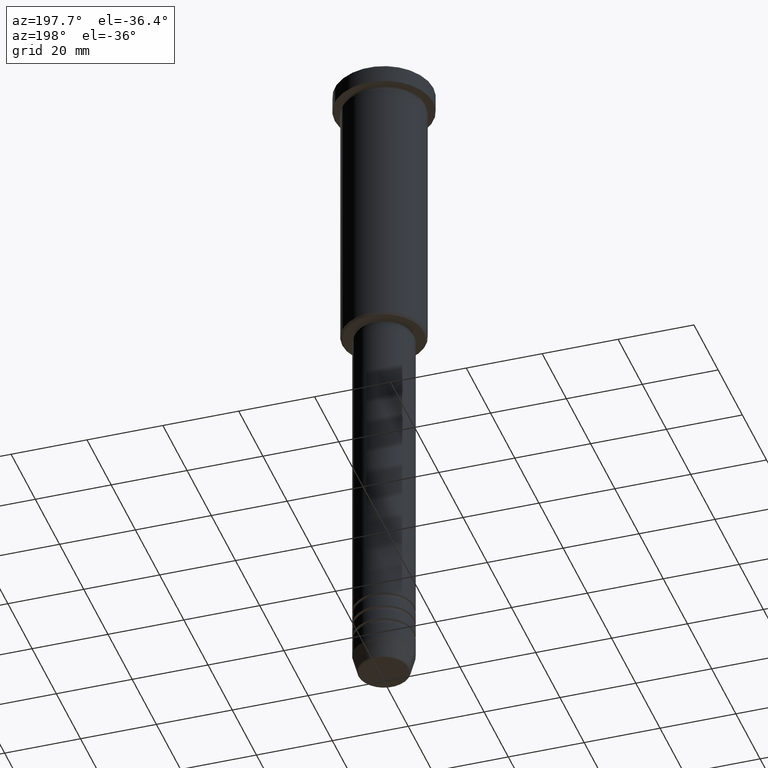
[diagram: clean part render]
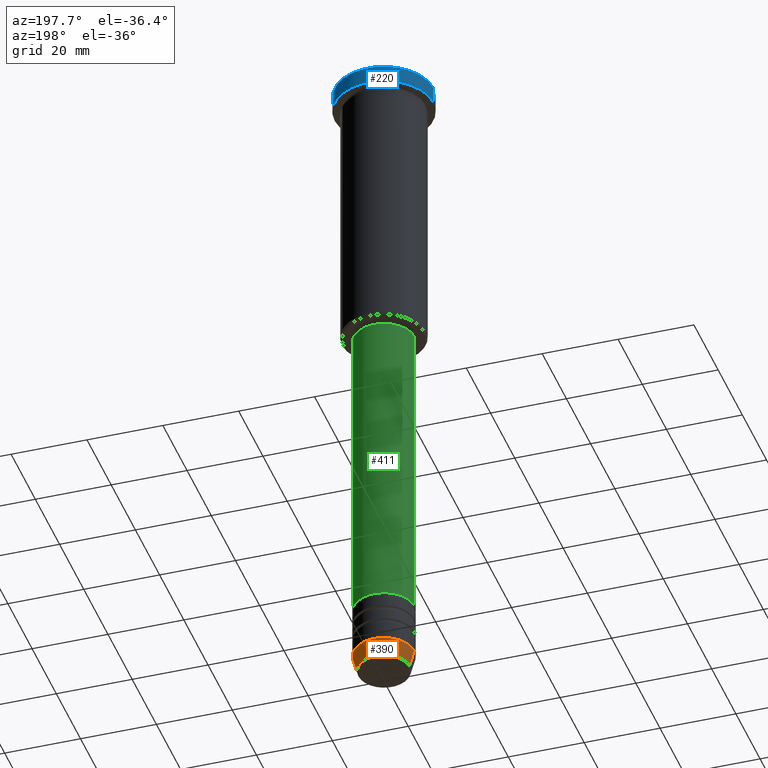
[diagram: same view with three faces highlighted in distinct colors, each labeled with its STEP entity id]
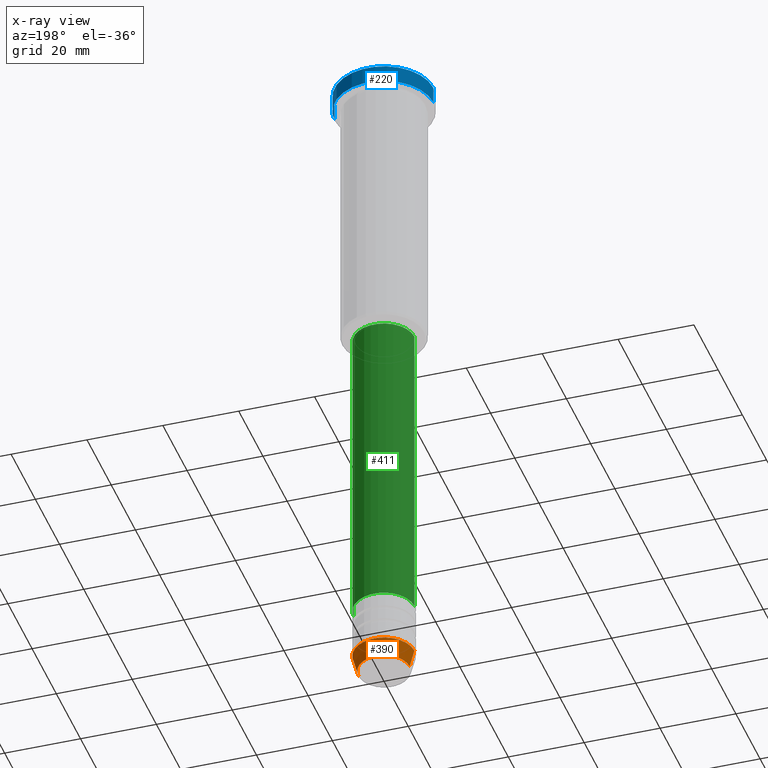
[diagram: x-ray of the same camera — body ghosted, the three highlighted faces saturated]
A machine part, auxiliary view with three faces highlighted in distinct colors.
The next image is the same camera in x-ray (body ghosted, the three faces saturated) — at least one of them is partly hidden behind the body in this view.
Their STEP definitions:

[orange] entity #390 — the highlighted conical surface has half-angle 15 deg.
#58 = CARTESIAN_POINT ( 'NONE',  ( 6.759553456999444876, 0.000000000000000000, -179.6294095225512422 ) ) ;
#70 = CARTESIAN_POINT ( 'NONE',  ( -8.000000000000000000, 9.797174393178825657E-16, -175.0000000000000284 ) ) ;
#105 = VERTEX_POINT ( 'NONE', #1067 ) ;
#143 = CARTESIAN_POINT ( 'NONE',  ( 0.000000000000000000, 0.000000000000000000, -175.0000000000000284 ) ) ;
#181 = FACE_OUTER_BOUND ( 'NONE', #667, .T. ) ;
#231 = AXIS2_PLACEMENT_3D ( 'NONE', #943, #1142, #494 ) ;
#297 = DIRECTION ( 'NONE',  ( 1.000000000000000000, 0.000000000000000000, 0.000000000000000000 ) ) ;
#340 = DIRECTION ( 'NONE',  ( 1.000000000000000000, 0.000000000000000000, 0.000000000000000000 ) ) ;
#377 = EDGE_CURVE ( 'NONE', #1123, #454, #619, .T. ) ;
#390 = ADVANCED_FACE ( 'NONE', ( #181 ), #825, .T. ) ;
#393 = VECTOR ( 'NONE', #1179, 1000.000000000000114 ) ;
#431 = DIRECTION ( 'NONE',  ( -0.000000000000000000, -0.000000000000000000, 1.000000000000000000 ) ) ;
#454 = VERTEX_POINT ( 'NONE', #658 ) ;
#490 = AXIS2_PLACEMENT_3D ( 'NONE', #932, #1120, #297 ) ;
#494 = DIRECTION ( 'NONE',  ( 1.000000000000000000, 0.000000000000000000, 0.000000000000000000 ) ) ;
#538 = EDGE_CURVE ( 'NONE', #105, #665, #644, .T. ) ;
#578 = EDGE_CURVE ( 'NONE', #454, #665, #799, .T. ) ;
#617 = DIRECTION ( 'NONE',  ( -0.2588190451025212391, 3.169619151431771721E-17, 0.9659258262890680902 ) ) ;
#619 = CIRCLE ( 'NONE', #231, 6.759553456999444876 ) ;
#644 = CIRCLE ( 'NONE', #787, 8.000000000000000000 ) ;
#658 = CARTESIAN_POINT ( 'NONE',  ( -6.759553456999444876, 9.037619948979310157E-16, -179.6294095225512422 ) ) ;
#665 = VERTEX_POINT ( 'NONE', #718 ) ;
#667 = EDGE_LOOP ( 'NONE', ( #1175, #836, #859, #855 ) ) ;
#718 = CARTESIAN_POINT ( 'NONE',  ( -8.000000000000000000, 9.797174393178825657E-16, -175.0000000000000284 ) ) ;
#721 = LINE ( 'NONE', #910, #393 ) ;
#787 = AXIS2_PLACEMENT_3D ( 'NONE', #143, #431, #340 ) ;
#799 = LINE ( 'NONE', #70, #1047 ) ;
#825 = CONICAL_SURFACE ( 'NONE', #490, 8.000000000000000000, 0.2617993877991499629 ) ;
#836 = ORIENTED_EDGE ( 'NONE', *, *, #578, .T. ) ;
#855 = ORIENTED_EDGE ( 'NONE', *, *, #1116, .F. ) ;
#859 = ORIENTED_EDGE ( 'NONE', *, *, #538, .F. ) ;
#910 = CARTESIAN_POINT ( 'NONE',  ( 8.000000000000000000, 0.000000000000000000, -175.0000000000000284 ) ) ;
#932 = CARTESIAN_POINT ( 'NONE',  ( 0.000000000000000000, 0.000000000000000000, -175.0000000000000284 ) ) ;
#943 = CARTESIAN_POINT ( 'NONE',  ( 0.000000000000000000, 0.000000000000000000, -179.6294095225512422 ) ) ;
#1047 = VECTOR ( 'NONE', #617, 1000.000000000000114 ) ;
#1067 = CARTESIAN_POINT ( 'NONE',  ( 8.000000000000000000, 0.000000000000000000, -175.0000000000000284 ) ) ;
#1116 = EDGE_CURVE ( 'NONE', #1123, #105, #721, .T. ) ;
#1120 = DIRECTION ( 'NONE',  ( -0.000000000000000000, -0.000000000000000000, 1.000000000000000000 ) ) ;
#1123 = VERTEX_POINT ( 'NONE', #58 ) ;
#1142 = DIRECTION ( 'NONE',  ( -0.000000000000000000, -0.000000000000000000, 1.000000000000000000 ) ) ;
#1175 = ORIENTED_EDGE ( 'NONE', *, *, #377, .T. ) ;
#1179 = DIRECTION ( 'NONE',  ( 0.2588190451025212391, 0.000000000000000000, 0.9659258262890680902 ) ) ;

[blue] entity #220 — the highlighted cylindrical surface (partial cylindrical patch) has radius 13 mm, axis along (-0, -0, 1).
#3 = AXIS2_PLACEMENT_3D ( 'NONE', #90, #1110, #101 ) ;
#9 = CARTESIAN_POINT ( 'NONE',  ( -13.00000000000000000, 1.592040838891559095E-15, 0.000000000000000000 ) ) ;
#59 = AXIS2_PLACEMENT_3D ( 'NONE', #1058, #1036, #589 ) ;
#61 = EDGE_CURVE ( 'NONE', #232, #503, #823, .T. ) ;
#73 = CIRCLE ( 'NONE', #3, 13.00000000000000000 ) ;
#90 = CARTESIAN_POINT ( 'NONE',  ( 0.000000000000000000, 0.000000000000000000, -5.000000000000000000 ) ) ;
#101 = DIRECTION ( 'NONE',  ( 1.000000000000000000, 0.000000000000000000, 0.000000000000000000 ) ) ;
#137 = ORIENTED_EDGE ( 'NONE', *, *, #272, .T. ) ;
#144 = CARTESIAN_POINT ( 'NONE',  ( 13.00000000000000000, 0.000000000000000000, 0.000000000000000000 ) ) ;
#158 = DIRECTION ( 'NONE',  ( 1.000000000000000000, 0.000000000000000000, 0.000000000000000000 ) ) ;
#164 = DIRECTION ( 'NONE',  ( -0.000000000000000000, -0.000000000000000000, 1.000000000000000000 ) ) ;
#220 = ADVANCED_FACE ( 'NONE', ( #1053 ), #388, .T. ) ;
#232 = VERTEX_POINT ( 'NONE', #1156 ) ;
#272 = EDGE_CURVE ( 'NONE', #558, #232, #73, .T. ) ;
#286 = CARTESIAN_POINT ( 'NONE',  ( 13.00000000000000000, 0.000000000000000000, -0.4999999999999518718 ) ) ;
#388 = CYLINDRICAL_SURFACE ( 'NONE', #59, 13.00000000000000000 ) ;
#413 = VECTOR ( 'NONE', #518, 1000.000000000000000 ) ;
#451 = AXIS2_PLACEMENT_3D ( 'NONE', #874, #995, #158 ) ;
#459 = CARTESIAN_POINT ( 'NONE',  ( 13.00000000000000000, 0.000000000000000000, -5.000000000000000000 ) ) ;
#503 = VERTEX_POINT ( 'NONE', #1013 ) ;
#508 = CIRCLE ( 'NONE', #451, 13.00000000000000000 ) ;
#518 = DIRECTION ( 'NONE',  ( -0.000000000000000000, -0.000000000000000000, 1.000000000000000000 ) ) ;
#551 = ORIENTED_EDGE ( 'NONE', *, *, #61, .T. ) ;
#558 = VERTEX_POINT ( 'NONE', #459 ) ;
#589 = DIRECTION ( 'NONE',  ( 1.000000000000000000, 0.000000000000000000, 0.000000000000000000 ) ) ;
#652 = EDGE_CURVE ( 'NONE', #558, #754, #895, .T. ) ;
#693 = EDGE_CURVE ( 'NONE', #503, #754, #508, .T. ) ;
#719 = ORIENTED_EDGE ( 'NONE', *, *, #693, .T. ) ;
#754 = VERTEX_POINT ( 'NONE', #286 ) ;
#765 = EDGE_LOOP ( 'NONE', ( #137, #551, #719, #860 ) ) ;
#823 = LINE ( 'NONE', #9, #963 ) ;
#860 = ORIENTED_EDGE ( 'NONE', *, *, #652, .F. ) ;
#874 = CARTESIAN_POINT ( 'NONE',  ( 0.000000000000000000, 0.000000000000000000, -0.4999999999999518718 ) ) ;
#895 = LINE ( 'NONE', #144, #413 ) ;
#963 = VECTOR ( 'NONE', #164, 1000.000000000000000 ) ;
#995 = DIRECTION ( 'NONE',  ( 0.000000000000000000, 0.000000000000000000, -1.000000000000000000 ) ) ;
#1013 = CARTESIAN_POINT ( 'NONE',  ( -13.00000000000000000, 1.592040838891559095E-15, -0.4999999999999518718 ) ) ;
#1036 = DIRECTION ( 'NONE',  ( -0.000000000000000000, -0.000000000000000000, 1.000000000000000000 ) ) ;
#1053 = FACE_OUTER_BOUND ( 'NONE', #765, .T. ) ;
#1058 = CARTESIAN_POINT ( 'NONE',  ( 0.000000000000000000, 0.000000000000000000, 0.000000000000000000 ) ) ;
#1110 = DIRECTION ( 'NONE',  ( -0.000000000000000000, -0.000000000000000000, 1.000000000000000000 ) ) ;
#1156 = CARTESIAN_POINT ( 'NONE',  ( -13.00000000000000000, 1.592040838891559095E-15, -5.000000000000000000 ) ) ;

[green] entity #411 — the highlighted cylindrical surface (edge-blend (fillet) strip) has radius 8 mm, axis along (-0, -0, 1).
#6 = AXIS2_PLACEMENT_3D ( 'NONE', #968, #325, #1069 ) ;
#29 = EDGE_CURVE ( 'NONE', #961, #505, #48, .T. ) ;
#36 = CARTESIAN_POINT ( 'NONE',  ( 8.000000000000000000, 0.000000000000000000, -161.0000000000000000 ) ) ;
#48 = LINE ( 'NONE', #425, #1098 ) ;
#113 = VECTOR ( 'NONE', #535, 1000.000000000000000 ) ;
#134 = ORIENTED_EDGE ( 'NONE', *, *, #29, .F. ) ;
#187 = CARTESIAN_POINT ( 'NONE',  ( 8.000000000000000000, 0.000000000000000000, -77.00000000000004263 ) ) ;
#216 = CIRCLE ( 'NONE', #768, 8.000000000000000000 ) ;
#233 = AXIS2_PLACEMENT_3D ( 'NONE', #282, #914, #556 ) ;
#257 = CARTESIAN_POINT ( 'NONE',  ( -8.000000000000000000, 9.797174393178825657E-16, 0.000000000000000000 ) ) ;
#282 = CARTESIAN_POINT ( 'NONE',  ( 0.000000000000000000, 0.000000000000000000, -77.00000000000004263 ) ) ;
#317 = EDGE_LOOP ( 'NONE', ( #447, #571, #1180, #134 ) ) ;
#320 = CARTESIAN_POINT ( 'NONE',  ( 0.000000000000000000, 0.000000000000000000, -161.0000000000000000 ) ) ;
#325 = DIRECTION ( 'NONE',  ( -0.000000000000000000, -0.000000000000000000, 1.000000000000000000 ) ) ;
#342 = LINE ( 'NONE', #257, #113 ) ;
#411 = ADVANCED_FACE ( 'NONE', ( #1125 ), #1062, .T. ) ;
#425 = CARTESIAN_POINT ( 'NONE',  ( 8.000000000000000000, 0.000000000000000000, 0.000000000000000000 ) ) ;
#447 = ORIENTED_EDGE ( 'NONE', *, *, #970, .T. ) ;
#505 = VERTEX_POINT ( 'NONE', #187 ) ;
#535 = DIRECTION ( 'NONE',  ( -0.000000000000000000, -0.000000000000000000, 1.000000000000000000 ) ) ;
#556 = DIRECTION ( 'NONE',  ( 1.000000000000000000, 0.000000000000000000, 0.000000000000000000 ) ) ;
#571 = ORIENTED_EDGE ( 'NONE', *, *, #624, .T. ) ;
#624 = EDGE_CURVE ( 'NONE', #805, #713, #342, .T. ) ;
#661 = CARTESIAN_POINT ( 'NONE',  ( -8.000000000000000000, 9.797174393178825657E-16, -161.0000000000000000 ) ) ;
#713 = VERTEX_POINT ( 'NONE', #1020 ) ;
#720 = EDGE_CURVE ( 'NONE', #505, #713, #1117, .T. ) ;
#762 = DIRECTION ( 'NONE',  ( 1.000000000000000000, 0.000000000000000000, 0.000000000000000000 ) ) ;
#768 = AXIS2_PLACEMENT_3D ( 'NONE', #320, #1034, #762 ) ;
#794 = DIRECTION ( 'NONE',  ( -0.000000000000000000, -0.000000000000000000, 1.000000000000000000 ) ) ;
#805 = VERTEX_POINT ( 'NONE', #661 ) ;
#914 = DIRECTION ( 'NONE',  ( -0.000000000000000000, -0.000000000000000000, 1.000000000000000000 ) ) ;
#961 = VERTEX_POINT ( 'NONE', #36 ) ;
#968 = CARTESIAN_POINT ( 'NONE',  ( 0.000000000000000000, 0.000000000000000000, 0.000000000000000000 ) ) ;
#970 = EDGE_CURVE ( 'NONE', #961, #805, #216, .T. ) ;
#1020 = CARTESIAN_POINT ( 'NONE',  ( -8.000000000000000000, 9.797174393178825657E-16, -77.00000000000004263 ) ) ;
#1034 = DIRECTION ( 'NONE',  ( -0.000000000000000000, -0.000000000000000000, 1.000000000000000000 ) ) ;
#1062 = CYLINDRICAL_SURFACE ( 'NONE', #6, 8.000000000000000000 ) ;
#1069 = DIRECTION ( 'NONE',  ( 1.000000000000000000, 0.000000000000000000, 0.000000000000000000 ) ) ;
#1098 = VECTOR ( 'NONE', #794, 1000.000000000000000 ) ;
#1117 = CIRCLE ( 'NONE', #233, 8.000000000000000000 ) ;
#1125 = FACE_OUTER_BOUND ( 'NONE', #317, .T. ) ;
#1180 = ORIENTED_EDGE ( 'NONE', *, *, #720, .F. ) ;